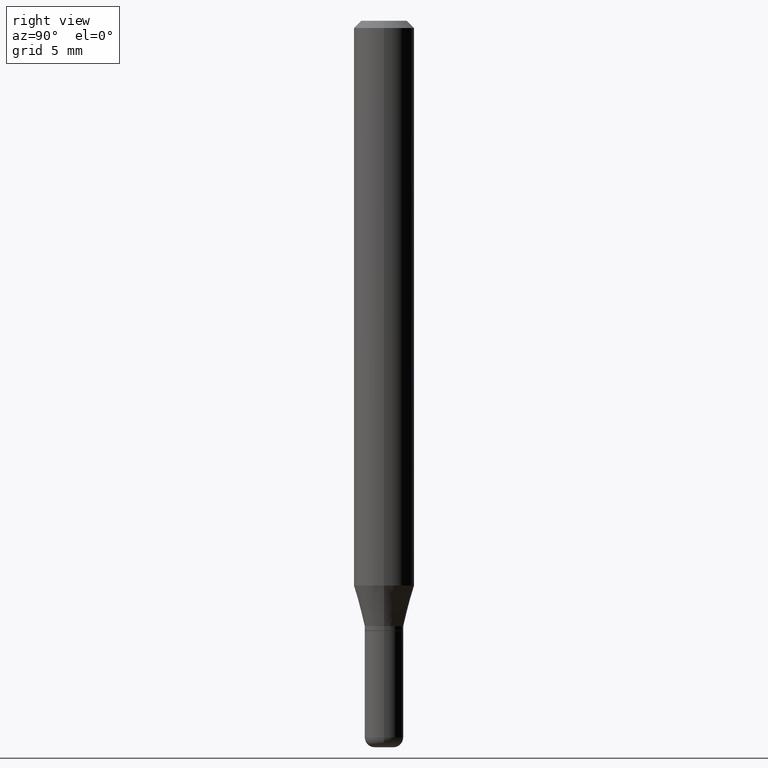
[diagram: clean part render]
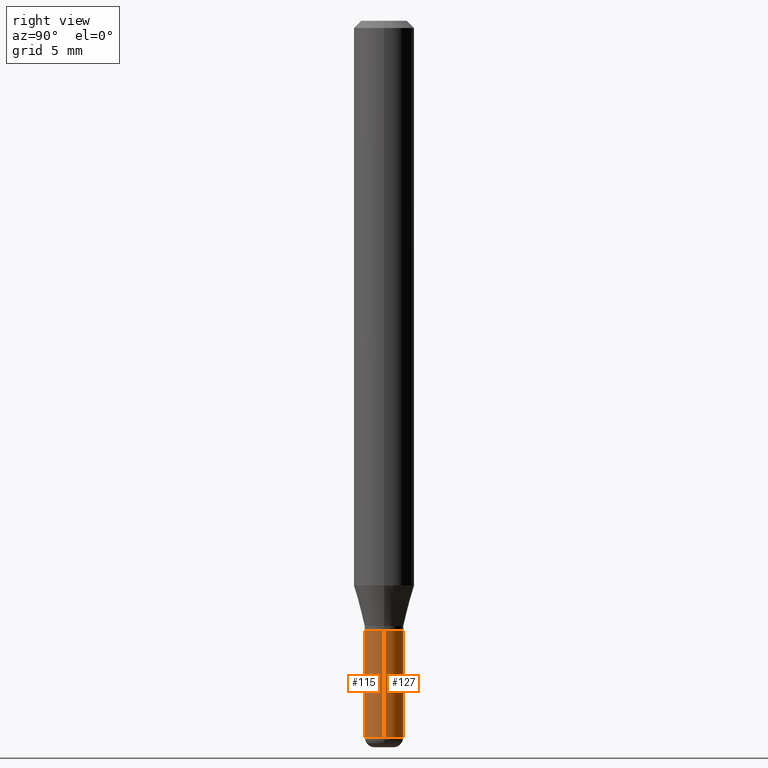
[diagram: same view with one multi-face feature highlighted, each face labeled with its STEP entity id]
A machine part, right view. The highlighted faces form ONE feature: a constant-radius fillet chain: 2 tangent blend faces with common blend radius 1.016 mm. The faces share edges in the B-rep.
Their STEP definitions:
[1] entity #127 (Cylinder):
#1 = VECTOR ( 'NONE', #206, 39.37007874015748143 ) ;
#9 = CARTESIAN_POINT ( 'NONE',  ( -0.04000000000000003553, -4.499112339911069567E-15, -1.479999999999999982 ) ) ;
#64 = VERTEX_POINT ( 'NONE', #366 ) ;
#71 = VERTEX_POINT ( 'NONE', #9 ) ;
#75 = EDGE_CURVE ( 'NONE', #204, #420, #404, .T. ) ;
#98 = DIRECTION ( 'NONE',  ( -2.445468806185136597E-29, 3.491481338843145583E-15, 1.000000000000000000 ) ) ;
#104 = EDGE_CURVE ( 'NONE', #71, #64, #447, .T. ) ;
#127 = ADVANCED_FACE ( 'NONE', ( #411 ), #177, .T. ) ;
#151 = EDGE_LOOP ( 'NONE', ( #299, #236, #498, #263 ) ) ;
#170 = CIRCLE ( 'NONE', #454, 0.04000000000000003553 ) ;
#177 = CYLINDRICAL_SURFACE ( 'NONE', #453, 0.04000000000000001471 ) ;
#179 = DIRECTION ( 'NONE',  ( -2.445468806185136597E-29, 3.491481338843145583E-15, 1.000000000000000000 ) ) ;
#204 = VERTEX_POINT ( 'NONE', #255 ) ;
#206 = DIRECTION ( 'NONE',  ( -2.445468806185136877E-29, 3.491481338843145188E-15, 1.000000000000000000 ) ) ;
#217 = DIRECTION ( 'NONE',  ( 1.000000000000000000, -6.982962677686259611E-15, 0.000000000000000000 ) ) ;
#236 = ORIENTED_EDGE ( 'NONE', *, *, #104, .T. ) ;
#245 = CARTESIAN_POINT ( 'NONE',  ( -0.04000000000000001471, 2.842170943040401789E-16, -1.967574036101963210E-30 ) ) ;
#255 = CARTESIAN_POINT ( 'NONE',  ( 0.04000000000000003553, -5.446710888595306494E-15, -1.479999999999999982 ) ) ;
#263 = ORIENTED_EDGE ( 'NONE', *, *, #75, .F. ) ;
#282 = CIRCLE ( 'NONE', #483, 0.04000000000000000083 ) ;
#291 = CARTESIAN_POINT ( 'NONE',  ( 0.04000000000000001471, -2.793185071074507769E-16, 1.950470710318375438E-30 ) ) ;
#295 = EDGE_CURVE ( 'NONE', #204, #71, #170, .T. ) ;
#299 = ORIENTED_EDGE ( 'NONE', *, *, #295, .T. ) ;
#310 = CARTESIAN_POINT ( 'NONE',  ( 3.619293833154002365E-29, -5.167392381487854879E-15, -1.479999999999999982 ) ) ;
#335 = DIRECTION ( 'NONE',  ( -2.445468806185136597E-29, 3.491481338843145583E-15, 1.000000000000000000 ) ) ;
#366 = CARTESIAN_POINT ( 'NONE',  ( -0.04000000000000000083, -4.499112339911069567E-15, -1.260000000000000231 ) ) ;
#374 = CARTESIAN_POINT ( 'NONE',  ( 0.04000000000000000083, -4.678584994049814947E-15, -1.260000000000000231 ) ) ;
#386 = DIRECTION ( 'NONE',  ( 1.000000000000000000, -6.982962677686277755E-15, 0.000000000000000000 ) ) ;
#397 = EDGE_CURVE ( 'NONE', #420, #64, #282, .T. ) ;
#404 = LINE ( 'NONE', #291, #1 ) ;
#405 = DIRECTION ( 'NONE',  ( -2.445468806185136877E-29, 3.491481338843145188E-15, 1.000000000000000000 ) ) ;
#411 = FACE_OUTER_BOUND ( 'NONE', #151, .T. ) ;
#417 = CARTESIAN_POINT ( 'NONE',  ( 0.000000000000000000, 0.000000000000000000, 0.000000000000000000 ) ) ;
#420 = VERTEX_POINT ( 'NONE', #374 ) ;
#447 = LINE ( 'NONE', #245, #455 ) ;
#453 = AXIS2_PLACEMENT_3D ( 'NONE', #417, #179, #496 ) ;
#454 = AXIS2_PLACEMENT_3D ( 'NONE', #310, #98, #386 ) ;
#455 = VECTOR ( 'NONE', #405, 39.37007874015748143 ) ;
#458 = CARTESIAN_POINT ( 'NONE',  ( 3.081290695793272291E-29, -4.399266486942364120E-15, -1.260000000000000231 ) ) ;
#483 = AXIS2_PLACEMENT_3D ( 'NONE', #458, #335, #217 ) ;
#496 = DIRECTION ( 'NONE',  ( 1.000000000000000000, -6.982962677686266711E-15, 4.876176775795936914E-29 ) ) ;
#498 = ORIENTED_EDGE ( 'NONE', *, *, #397, .F. ) ;
[2] entity #115 (Cylinder):
#1 = VECTOR ( 'NONE', #206, 39.37007874015748143 ) ;
#9 = CARTESIAN_POINT ( 'NONE',  ( -0.04000000000000003553, -4.499112339911069567E-15, -1.479999999999999982 ) ) ;
#11 = DIRECTION ( 'NONE',  ( 1.000000000000000000, -6.982962677686266711E-15, 4.876176775795936914E-29 ) ) ;
#30 = DIRECTION ( 'NONE',  ( 1.000000000000000000, -6.982962677686259611E-15, 0.000000000000000000 ) ) ;
#48 = FACE_OUTER_BOUND ( 'NONE', #465, .T. ) ;
#64 = VERTEX_POINT ( 'NONE', #366 ) ;
#71 = VERTEX_POINT ( 'NONE', #9 ) ;
#75 = EDGE_CURVE ( 'NONE', #204, #420, #404, .T. ) ;
#91 = CYLINDRICAL_SURFACE ( 'NONE', #381, 0.04000000000000001471 ) ;
#104 = EDGE_CURVE ( 'NONE', #71, #64, #447, .T. ) ;
#108 = DIRECTION ( 'NONE',  ( -2.445468806185136597E-29, 3.491481338843145583E-15, 1.000000000000000000 ) ) ;
#115 = ADVANCED_FACE ( 'NONE', ( #48 ), #91, .T. ) ;
#130 = ORIENTED_EDGE ( 'NONE', *, *, #375, .F. ) ;
#143 = DIRECTION ( 'NONE',  ( -2.445468806185136597E-29, 3.491481338843145583E-15, 1.000000000000000000 ) ) ;
#189 = CARTESIAN_POINT ( 'NONE',  ( 3.619293833154002365E-29, -5.167392381487854879E-15, -1.479999999999999982 ) ) ;
#203 = AXIS2_PLACEMENT_3D ( 'NONE', #189, #143, #472 ) ;
#204 = VERTEX_POINT ( 'NONE', #255 ) ;
#206 = DIRECTION ( 'NONE',  ( -2.445468806185136877E-29, 3.491481338843145188E-15, 1.000000000000000000 ) ) ;
#231 = ORIENTED_EDGE ( 'NONE', *, *, #259, .T. ) ;
#245 = CARTESIAN_POINT ( 'NONE',  ( -0.04000000000000001471, 2.842170943040401789E-16, -1.967574036101963210E-30 ) ) ;
#255 = CARTESIAN_POINT ( 'NONE',  ( 0.04000000000000003553, -5.446710888595306494E-15, -1.479999999999999982 ) ) ;
#259 = EDGE_CURVE ( 'NONE', #71, #204, #494, .T. ) ;
#291 = CARTESIAN_POINT ( 'NONE',  ( 0.04000000000000001471, -2.793185071074507769E-16, 1.950470710318375438E-30 ) ) ;
#343 = ORIENTED_EDGE ( 'NONE', *, *, #104, .F. ) ;
#366 = CARTESIAN_POINT ( 'NONE',  ( -0.04000000000000000083, -4.499112339911069567E-15, -1.260000000000000231 ) ) ;
#373 = CARTESIAN_POINT ( 'NONE',  ( 0.000000000000000000, 0.000000000000000000, 0.000000000000000000 ) ) ;
#374 = CARTESIAN_POINT ( 'NONE',  ( 0.04000000000000000083, -4.678584994049814947E-15, -1.260000000000000231 ) ) ;
#375 = EDGE_CURVE ( 'NONE', #64, #420, #421, .T. ) ;
#381 = AXIS2_PLACEMENT_3D ( 'NONE', #373, #419, #11 ) ;
#404 = LINE ( 'NONE', #291, #1 ) ;
#405 = DIRECTION ( 'NONE',  ( -2.445468806185136877E-29, 3.491481338843145188E-15, 1.000000000000000000 ) ) ;
#419 = DIRECTION ( 'NONE',  ( -2.445468806185136597E-29, 3.491481338843145583E-15, 1.000000000000000000 ) ) ;
#420 = VERTEX_POINT ( 'NONE', #374 ) ;
#421 = CIRCLE ( 'NONE', #433, 0.04000000000000000083 ) ;
#433 = AXIS2_PLACEMENT_3D ( 'NONE', #476, #108, #30 ) ;
#447 = LINE ( 'NONE', #245, #455 ) ;
#455 = VECTOR ( 'NONE', #405, 39.37007874015748143 ) ;
#465 = EDGE_LOOP ( 'NONE', ( #343, #231, #514, #130 ) ) ;
#472 = DIRECTION ( 'NONE',  ( 1.000000000000000000, -6.982962677686277755E-15, 0.000000000000000000 ) ) ;
#476 = CARTESIAN_POINT ( 'NONE',  ( 3.081290695793272291E-29, -4.399266486942364120E-15, -1.260000000000000231 ) ) ;
#494 = CIRCLE ( 'NONE', #203, 0.04000000000000003553 ) ;
#514 = ORIENTED_EDGE ( 'NONE', *, *, #75, .T. ) ;